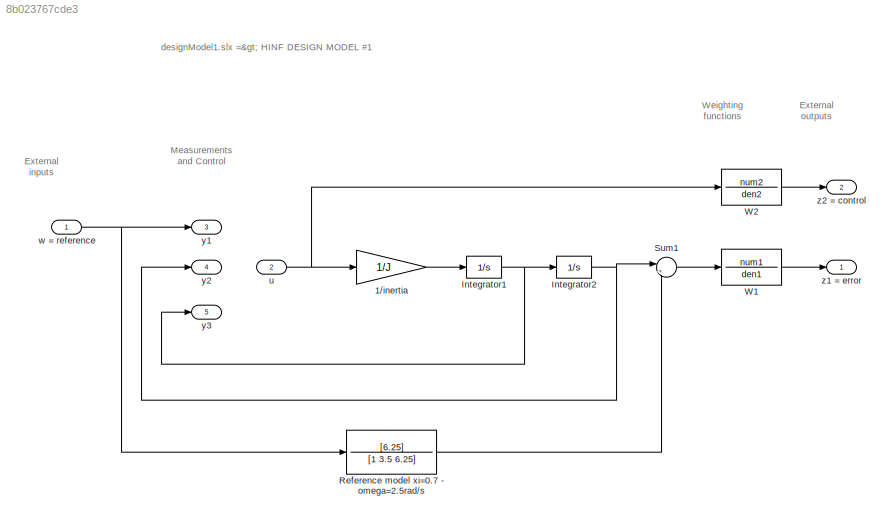
MODEL slx_8b023767cde3
KIND model
CONFIG AbsTol = auto
CONFIG EnableMultiTasking = off
CONFIG FixedStep = auto
CONFIG MaxStep = auto
CONFIG MinStep = auto
CONFIG RelTol = 1e-3
CONFIG SampleTimeConstraint = Unconstrained
CONFIG Solver = ode45
CONFIG SolverName = ode45
CONFIG StartTime = 0.0
CONFIG StopTime = 10.0
BLOCK [Gain] 1//inertia
  Gain = 1/J
BLOCK [Integrator] Integrator1
  Ports = [1, 1]
BLOCK [Integrator] Integrator2
  Ports = [1, 1]
BLOCK [TransferFcn] Reference model xi=0.7 - omega=2.5rad//s
  Denominator = [1 3.5 6.25]
  Numerator = [6.25]
BLOCK [Sum] Sum1
  IconShape = round
  InputSameDT = off
  Inputs = |+-
  OutDataTypeStr = Inherit: Inherit via internal rule
  Ports = [2, 1]
BLOCK [TransferFcn] W1
  Denominator = den1
  Numerator = num1
BLOCK [TransferFcn] W2
  Denominator = den2
  Numerator = num2
BLOCK [Inport] u
  IconDisplay = Port number
  Port = 2
BLOCK [Inport] w = reference
  IconDisplay = Port number
BLOCK [Outport] y1
  IconDisplay = Port number
  Port = 3
BLOCK [Outport] y2
  IconDisplay = Port number
  Port = 4
BLOCK [Outport] y3
  IconDisplay = Port number
  Port = 5
BLOCK [Outport] z1 = error
  IconDisplay = Port number
BLOCK [Outport] z2 = control
  IconDisplay = Port number
  Port = 2
ANNOTATION (root): External outputs
ANNOTATION (root): Weighting functions
ANNOTATION (root): designModel1.slx => HINF DESIGN MODEL #1
ANNOTATION (root): External inputs
ANNOTATION (root): Measurements and Control
LINE 1//inertia:1 -> Integrator1:1
NET Integrator1:1 -> Integrator2:1, y3:1
NET Integrator2:1 -> Sum1:1, y2:1
LINE Reference model xi=0.7 - omega=2.5rad//s:1 -> Sum1:2
LINE Sum1:1 -> W1:1
LINE W1:1 -> z1 = error:1
LINE W2:1 -> z2 = control:1
NET u:1 -> 1//inertia:1, W2:1
NET w = reference:1 -> Reference model xi=0.7 - omega=2.5rad//s:1, y1:1
note: NET lines group one-source signal fan-out (src -> all destinations, sorted); 1:1 wires keep LINE
